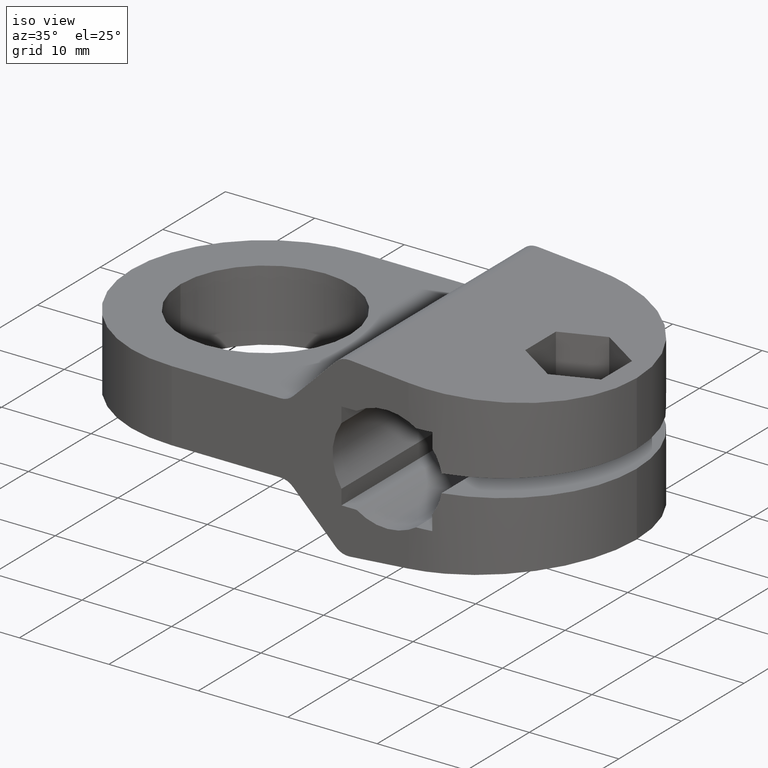
[diagram: clean part render]
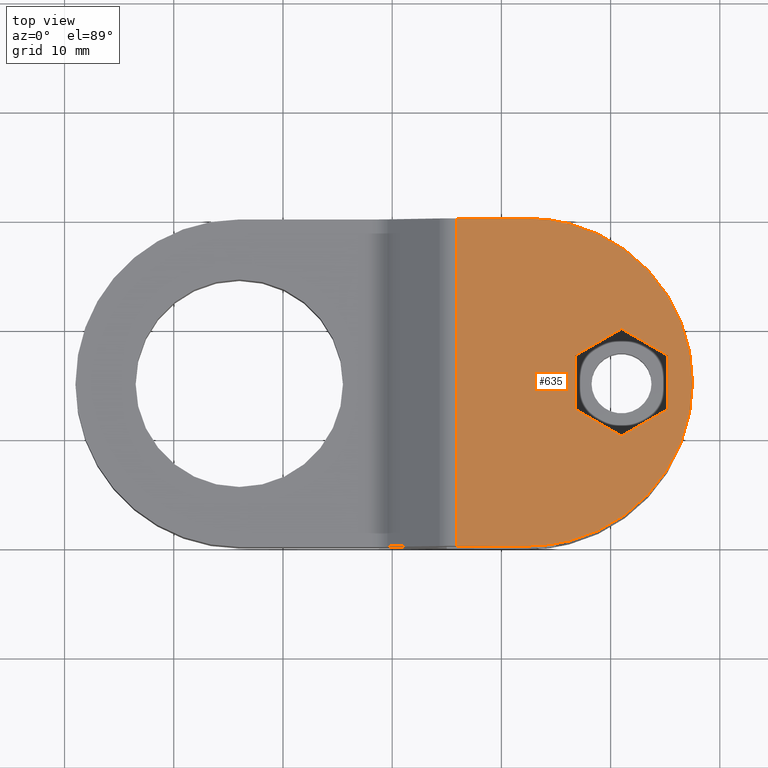
[diagram: tour spotlight — one face highlighted and labeled with its STEP entity id]
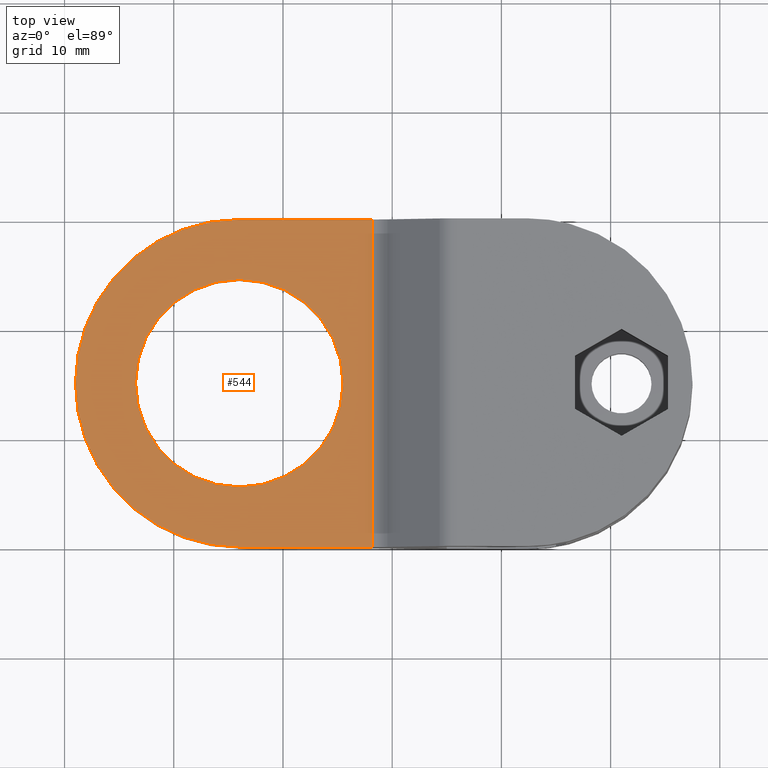
[diagram: tour spotlight — one face highlighted and labeled with its STEP entity id]
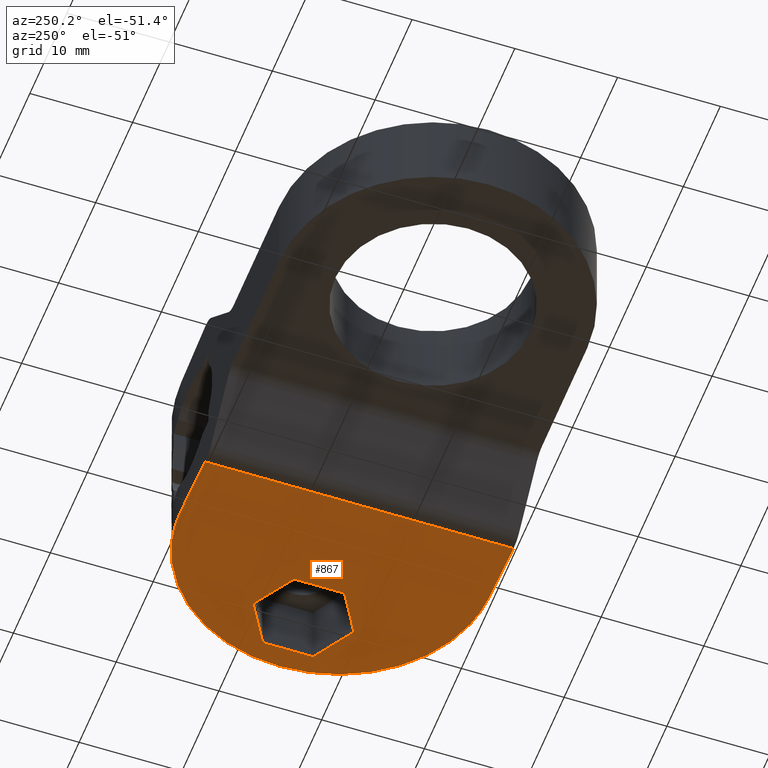
[diagram: tour spotlight — one face highlighted and labeled with its STEP entity id]
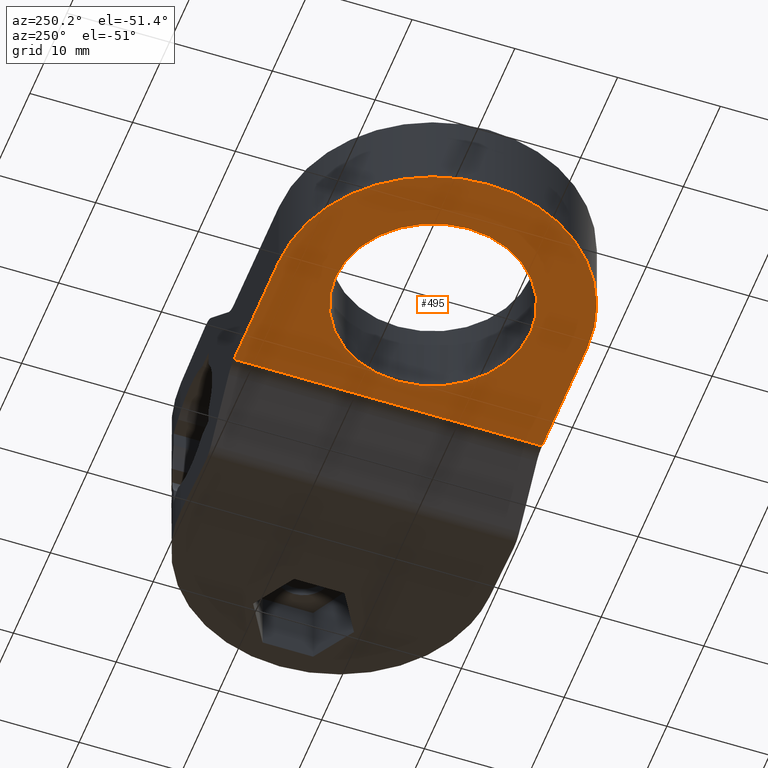
[diagram: tour spotlight — one face highlighted and labeled with its STEP entity id]
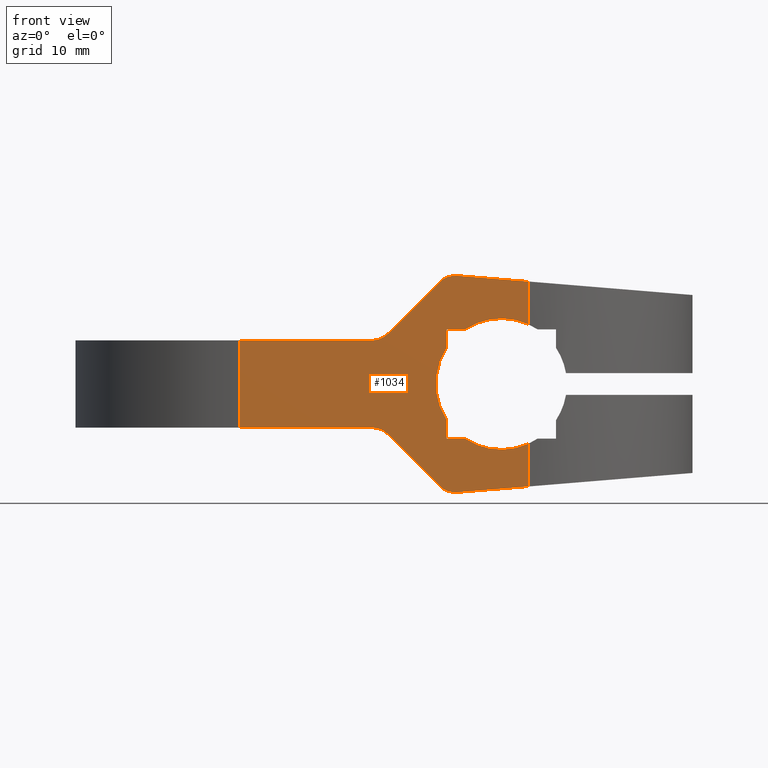
[diagram: tour spotlight — one face highlighted and labeled with its STEP entity id]
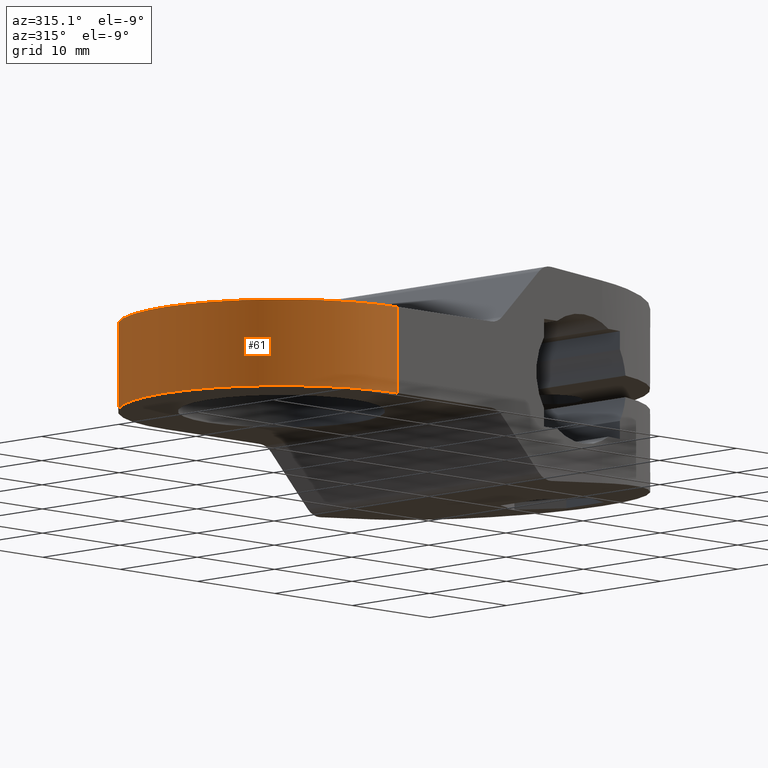
[diagram: tour spotlight — one face highlighted and labeled with its STEP entity id]
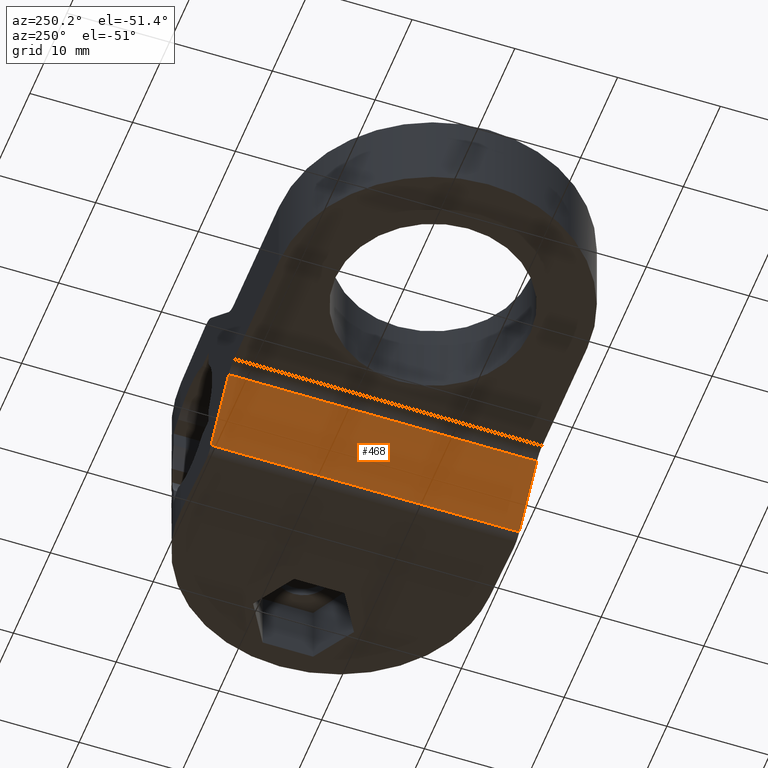
[diagram: tour spotlight — one face highlighted and labeled with its STEP entity id]
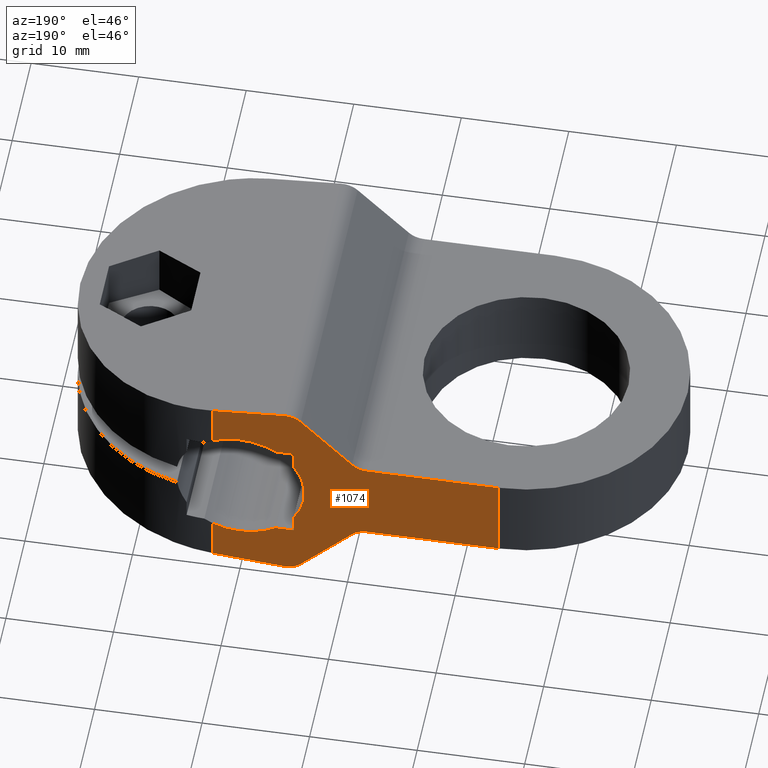
[diagram: tour spotlight — one face highlighted and labeled with its STEP entity id]
A machine part: a face-by-face anatomy tour. The part has 49 B-rep faces; the first image is the clean iso view, then the 8 largest visible faces are spotlighted one at a time (largest first), each with its STEP entity span.

Face 1 — top view, entity #635. In plain terms, the highlighted planar face has unit normal (0.0819, 0, 0.9966).
Definition (entity closure, byte-faithful):
#378=CARTESIAN_POINT('',(-4.076857879930003,-30.0,9.924097203460917));
#379=VERTEX_POINT('',#378);
#387=CARTESIAN_POINT('',(-4.076857879930003,0.0,9.924097203460917));
#388=VERTEX_POINT('',#387);
#389=CARTESIAN_POINT('',(-4.076857879930003,0.0,9.924097203460917));
#390=DIRECTION('',(0.0,-1.0,0.0));
#391=VECTOR('',#390,30.0);
#392=LINE('',#389,#391);
#393=EDGE_CURVE('',#388,#379,#392,.T.);
#545=CARTESIAN_POINT('',(17.500000000000000,0.0,8.149999999999999));
#546=DIRECTION('',(0.081945692132050,0.0,0.996636796200602));
#547=DIRECTION('',(-0.996636796200602,0.0,0.081945692132050));
#548=AXIS2_PLACEMENT_3D('',#545,#546,#547);
#549=PLANE('',#548);
#550=CARTESIAN_POINT('',(2.500000000000000,-29.999999999999993,9.383333333333340));
#551=VERTEX_POINT('',#550);
#552=CARTESIAN_POINT('',(-4.076857879930003,-30.0,9.924097203460919));
#553=DIRECTION('',(0.996636796200602,0.0,-0.081945692132050));
#554=VECTOR('',#553,6.599051836137730);
#555=LINE('',#552,#554);
#556=EDGE_CURVE('',#379,#551,#555,.T.);
#557=ORIENTED_EDGE('',*,*,#556,.T.);
#558=CARTESIAN_POINT('',(17.500000000000000,-15.0,8.149999999999999));
#559=VERTEX_POINT('',#558);
#560=CARTESIAN_POINT('',(2.500000000000000,-14.999999999999993,9.383333333333342));
#561=DIRECTION('',(-0.081945692132050,0.0,-0.996636796200602));
#562=DIRECTION('',(-0.996636796200602,4.620372E-015,0.081945692132050));
#563=AXIS2_PLACEMENT_3D('',#560,#561,#562);
#564=ELLIPSE('',#563,15.050618296638550,15.0);
#565=EDGE_CURVE('',#559,#551,#564,.T.);
#566=ORIENTED_EDGE('',*,*,#565,.F.);
#567=CARTESIAN_POINT('',(2.500000000000000,0.0,9.383333333333340));
#568=VERTEX_POINT('',#567);
#569=CARTESIAN_POINT('',(2.500000000000000,-15.0,9.383333333333342));
#570=DIRECTION('',(0.081945692132050,0.0,0.996636796200602));
#571=DIRECTION('',(-0.996636796200602,0.0,0.081945692132050));
#572=AXIS2_PLACEMENT_3D('',#569,#570,#571);
#573=ELLIPSE('',#572,15.050618296638550,15.0);
#574=EDGE_CURVE('',#559,#568,#573,.T.);
#575=ORIENTED_EDGE('',*,*,#574,.T.);
#576=CARTESIAN_POINT('',(2.499999999999998,0.0,9.383333333333338));
#577=DIRECTION('',(-0.996636796200602,0.0,0.081945692132050));
#578=VECTOR('',#577,6.599051836137727);
#579=LINE('',#576,#578);
#580=EDGE_CURVE('',#568,#388,#579,.T.);
#581=ORIENTED_EDGE('',*,*,#580,.T.);
#582=ORIENTED_EDGE('',*,*,#393,.T.);
#583=EDGE_LOOP('',(#557,#566,#575,#581,#582));
#584=FACE_OUTER_BOUND('',#583,.T.);
#585=CARTESIAN_POINT('',(15.249972875253775,-17.453738644055925,8.335002230256912));
#586=VERTEX_POINT('',#585);
#587=CARTESIAN_POINT('',(10.999972875253775,-19.907477288111835,8.684446674701356));
#588=VERTEX_POINT('',#587);
#589=CARTESIAN_POINT('',(15.249972875253775,-17.453738644055925,8.335002230256912));
#590=DIRECTION('',(-0.863838183019764,-0.498737207502738,0.071026695048292));
#591=VECTOR('',#590,4.919902921103873);
#592=LINE('',#589,#591);
#593=EDGE_CURVE('',#586,#588,#592,.T.);
#594=ORIENTED_EDGE('',*,*,#593,.T.);
#595=CARTESIAN_POINT('',(6.749972875253775,-17.453738644055925,9.033891119145807));
#596=VERTEX_POINT('',#595);
#597=CARTESIAN_POINT('',(6.749972875253775,-17.453738644055925,9.033891119145807));
#598=DIRECTION('',(0.863838183019764,-0.498737207502738,-0.071026695048293));
#599=VECTOR('',#598,4.919902921103874);
#600=LINE('',#597,#599);
#601=EDGE_CURVE('',#596,#588,#600,.T.);
#602=ORIENTED_EDGE('',*,*,#601,.F.);
#603=CARTESIAN_POINT('',(6.749972875253775,-12.546261355944104,9.033891119145807));
#604=VERTEX_POINT('',#603);
#605=CARTESIAN_POINT('',(6.749972875253775,-12.546261355944104,9.033891119145807));
#606=DIRECTION('',(0.0,-1.0,0.0));
#607=VECTOR('',#606,4.907477288111821);
#608=LINE('',#605,#607);
#609=EDGE_CURVE('',#604,#596,#608,.T.);
#610=ORIENTED_EDGE('',*,*,#609,.F.);
#611=CARTESIAN_POINT('',(10.999972875253775,-10.092522711888193,8.684446674701356));
#612=VERTEX_POINT('',#611);
#613=CARTESIAN_POINT('',(10.999972875253775,-10.092522711888193,8.684446674701356));
#614=DIRECTION('',(-0.863838183019764,-0.498737207502738,0.071026695048293));
#615=VECTOR('',#614,4.919902921103874);
#616=LINE('',#613,#615);
#617=EDGE_CURVE('',#612,#604,#616,.T.);
#618=ORIENTED_EDGE('',*,*,#617,.F.);
#619=CARTESIAN_POINT('',(15.249972875253775,-12.546261355944104,8.335002230256912));
#620=VERTEX_POINT('',#619);
#621=CARTESIAN_POINT('',(15.249972875253775,-12.546261355944104,8.335002230256912));
#622=DIRECTION('',(-0.863838183019764,0.498737207502738,0.071026695048292));
#623=VECTOR('',#622,4.919902921103873);
#624=LINE('',#621,#623);
#625=EDGE_CURVE('',#620,#612,#624,.T.);
#626=ORIENTED_EDGE('',*,*,#625,.F.);
#627=CARTESIAN_POINT('',(15.249972875253775,-17.453738644055925,8.335002230256912));
#628=DIRECTION('',(0.0,1.0,0.0));
#629=VECTOR('',#628,4.907477288111821);
#630=LINE('',#627,#629);
#631=EDGE_CURVE('',#586,#620,#630,.T.);
#632=ORIENTED_EDGE('',*,*,#631,.F.);
#633=EDGE_LOOP('',(#594,#602,#610,#618,#626,#632));
#634=FACE_BOUND('',#633,.T.);
#635=ADVANCED_FACE('',(#584,#634),#549,.T.);

Face 2 — top view, entity #544. In plain terms, the highlighted planar face has unit normal (0, 0, 1).
Definition (entity closure, byte-faithful):
#7=CARTESIAN_POINT('',(-24.0,0.0,4.000000000000007));
#8=VERTEX_POINT('',#7);
#9=CARTESIAN_POINT('',(-39.0,-15.000000000000007,4.0));
#10=VERTEX_POINT('',#9);
#11=CARTESIAN_POINT('',(-24.0,-15.000000000000007,4.000000000000007));
#12=DIRECTION('',(-1.033517E-016,1.776357E-016,1.0));
#13=DIRECTION('',(-1.0,0.0,-1.033517E-016));
#14=AXIS2_PLACEMENT_3D('',#11,#12,#13);
#15=CIRCLE('',#14,15.000000000000004);
#16=EDGE_CURVE('',#8,#10,#15,.T.);
#44=CARTESIAN_POINT('',(-24.0,-30.0,4.000000000000007));
#45=VERTEX_POINT('',#44);
#52=CARTESIAN_POINT('',(-24.0,-15.000000000000007,4.000000000000007));
#53=DIRECTION('',(-1.033517E-016,1.776357E-016,1.0));
#54=DIRECTION('',(-1.0,0.0,-1.033517E-016));
#55=AXIS2_PLACEMENT_3D('',#52,#53,#54);
#56=CIRCLE('',#55,15.000000000000004);
#57=EDGE_CURVE('',#10,#45,#56,.T.);
#67=CARTESIAN_POINT('',(-33.500000000000000,-15.000000000000007,4.000000000000007));
#68=VERTEX_POINT('',#67);
#94=CARTESIAN_POINT('',(-14.500000000000002,-15.000000000000007,4.000000000000010));
#95=VERTEX_POINT('',#94);
#96=CARTESIAN_POINT('',(-24.0,-15.000000000000007,4.000000000000007));
#97=DIRECTION('',(-2.537653E-016,0.0,1.0));
#98=DIRECTION('',(-1.0,0.0,-2.537653E-016));
#99=AXIS2_PLACEMENT_3D('',#96,#97,#98);
#100=CIRCLE('',#99,9.500000000000000);
#101=EDGE_CURVE('',#68,#95,#100,.T.);
#103=CARTESIAN_POINT('',(-24.0,-15.000000000000007,4.000000000000007));
#104=DIRECTION('',(-2.537653E-016,0.0,1.0));
#105=DIRECTION('',(-1.0,0.0,-2.537653E-016));
#106=AXIS2_PLACEMENT_3D('',#103,#104,#105);
#107=CIRCLE('',#106,9.500000000000000);
#108=EDGE_CURVE('',#95,#68,#107,.T.);
#412=CARTESIAN_POINT('',(-11.828427124746213,0.0,4.000000000000007));
#413=VERTEX_POINT('',#412);
#421=CARTESIAN_POINT('',(-11.828427124746213,-29.999999999999993,4.000000000000007));
#422=VERTEX_POINT('',#421);
#423=CARTESIAN_POINT('',(-11.828427124746213,0.0,4.000000000000007));
#424=DIRECTION('',(0.0,-1.0,0.0));
#425=VECTOR('',#424,29.999999999999993);
#426=LINE('',#423,#425);
#427=EDGE_CURVE('',#413,#422,#426,.T.);
#518=CARTESIAN_POINT('',(-11.0,0.0,4.000000000000007));
#519=DIRECTION('',(0.0,0.0,1.0));
#520=DIRECTION('',(-1.0,0.0,0.0));
#521=AXIS2_PLACEMENT_3D('',#518,#519,#520);
#522=PLANE('',#521);
#523=ORIENTED_EDGE('',*,*,#16,.T.);
#524=ORIENTED_EDGE('',*,*,#57,.T.);
#525=CARTESIAN_POINT('',(-24.0,-30.0,4.000000000000007));
#526=DIRECTION('',(1.0,0.0,0.0));
#527=VECTOR('',#526,12.171572875253787);
#528=LINE('',#525,#527);
#529=EDGE_CURVE('',#45,#422,#528,.T.);
#530=ORIENTED_EDGE('',*,*,#529,.T.);
#531=ORIENTED_EDGE('',*,*,#427,.F.);
#532=CARTESIAN_POINT('',(-11.828427124746213,0.0,4.000000000000007));
#533=DIRECTION('',(-1.0,0.0,0.0));
#534=VECTOR('',#533,12.171572875253787);
#535=LINE('',#532,#534);
#536=EDGE_CURVE('',#413,#8,#535,.T.);
#537=ORIENTED_EDGE('',*,*,#536,.T.);
#538=EDGE_LOOP('',(#523,#524,#530,#531,#537));
#539=FACE_OUTER_BOUND('',#538,.T.);
#540=ORIENTED_EDGE('',*,*,#108,.F.);
#541=ORIENTED_EDGE('',*,*,#101,.F.);
#542=EDGE_LOOP('',(#540,#541));
#543=FACE_BOUND('',#542,.T.);
#544=ADVANCED_FACE('',(#539,#543),#522,.T.);

Face 3 — auxiliary view, entity #867. In plain terms, the highlighted planar face has unit normal (0.0819, 0, -0.9966).
Definition (entity closure, byte-faithful):
#286=CARTESIAN_POINT('',(-4.076857879930003,0.0,-9.924097203460914));
#287=VERTEX_POINT('',#286);
#295=CARTESIAN_POINT('',(-4.076857879930003,-30.000000000000007,-9.924097203460914));
#296=VERTEX_POINT('',#295);
#297=CARTESIAN_POINT('',(-4.076857879930003,0.0,-9.924097203460914));
#298=DIRECTION('',(0.0,-1.0,0.0));
#299=VECTOR('',#298,30.000000000000007);
#300=LINE('',#297,#299);
#301=EDGE_CURVE('',#287,#296,#300,.T.);
#711=CARTESIAN_POINT('',(17.500000000000000,-15.0,-8.149999999999999));
#712=VERTEX_POINT('',#711);
#713=CARTESIAN_POINT('',(2.500000000000000,-30.0,-9.383333333333329));
#714=VERTEX_POINT('',#713);
#715=CARTESIAN_POINT('',(2.500000000000000,-15.0,-9.383333333333340));
#716=DIRECTION('',(0.081945692132050,0.0,-0.996636796200602));
#717=DIRECTION('',(0.996636796200602,4.620372E-015,0.081945692132050));
#718=AXIS2_PLACEMENT_3D('',#715,#716,#717);
#719=ELLIPSE('',#718,15.050618296638550,15.0);
#720=EDGE_CURVE('',#712,#714,#719,.T.);
#787=CARTESIAN_POINT('',(-5.0,0.0,-10.000000000000004));
#788=DIRECTION('',(0.081945692132050,0.0,-0.996636796200602));
#789=DIRECTION('',(0.996636796200602,0.0,0.081945692132050));
#790=AXIS2_PLACEMENT_3D('',#787,#788,#789);
#791=PLANE('',#790);
#792=CARTESIAN_POINT('',(2.500000000000000,0.0,-9.383333333333333));
#793=VERTEX_POINT('',#792);
#794=CARTESIAN_POINT('',(-4.076857879930003,0.0,-9.924097203460915));
#795=DIRECTION('',(0.996636796200602,0.0,0.081945692132050));
#796=VECTOR('',#795,6.599051836137730);
#797=LINE('',#794,#796);
#798=EDGE_CURVE('',#287,#793,#797,.T.);
#799=ORIENTED_EDGE('',*,*,#798,.T.);
#800=CARTESIAN_POINT('',(2.500000000000000,-15.0,-9.383333333333340));
#801=DIRECTION('',(-0.081945692132050,0.0,0.996636796200602));
#802=DIRECTION('',(0.996636796200602,0.0,0.081945692132050));
#803=AXIS2_PLACEMENT_3D('',#800,#801,#802);
#804=ELLIPSE('',#803,15.050618296638550,15.0);
#805=EDGE_CURVE('',#712,#793,#804,.T.);
#806=ORIENTED_EDGE('',*,*,#805,.F.);
#807=ORIENTED_EDGE('',*,*,#720,.T.);
#808=CARTESIAN_POINT('',(-4.076857879930004,-30.000000000000007,-9.924097203460905));
#809=DIRECTION('',(0.996636796200602,5.383673E-016,0.081945692132049));
#810=VECTOR('',#809,6.599051836137731);
#811=LINE('',#808,#810);
#812=EDGE_CURVE('',#296,#714,#811,.T.);
#813=ORIENTED_EDGE('',*,*,#812,.F.);
#814=ORIENTED_EDGE('',*,*,#301,.F.);
#815=EDGE_LOOP('',(#799,#806,#807,#813,#814));
#816=FACE_OUTER_BOUND('',#815,.T.);
#817=CARTESIAN_POINT('',(15.249972875253775,-12.546261355944104,-8.335002230256919));
#818=VERTEX_POINT('',#817);
#819=CARTESIAN_POINT('',(10.999972875253775,-10.092522711888193,-8.684446674701363));
#820=VERTEX_POINT('',#819);
#821=CARTESIAN_POINT('',(15.249972875253775,-12.546261355944104,-8.335002230256919));
#822=DIRECTION('',(-0.863838183019764,0.498737207502738,-0.071026695048292));
#823=VECTOR('',#822,4.919902921103873);
#824=LINE('',#821,#823);
#825=EDGE_CURVE('',#818,#820,#824,.T.);
#826=ORIENTED_EDGE('',*,*,#825,.T.);
#827=CARTESIAN_POINT('',(6.749972875253775,-12.546261355944104,-9.033891119145810));
#828=VERTEX_POINT('',#827);
#829=CARTESIAN_POINT('',(6.749972875253775,-12.546261355944104,-9.033891119145810));
#830=DIRECTION('',(0.863838183019764,0.498737207502738,0.071026695048292));
#831=VECTOR('',#830,4.919902921103874);
#832=LINE('',#829,#831);
#833=EDGE_CURVE('',#828,#820,#832,.T.);
#834=ORIENTED_EDGE('',*,*,#833,.F.);
#835=CARTESIAN_POINT('',(6.749972875253775,-17.453738644055925,-9.033891119145810));
#836=VERTEX_POINT('',#835);
#837=CARTESIAN_POINT('',(6.749972875253775,-17.453738644055925,-9.033891119145810));
#838=DIRECTION('',(0.0,1.0,0.0));
#839=VECTOR('',#838,4.907477288111821);
#840=LINE('',#837,#839);
#841=EDGE_CURVE('',#836,#828,#840,.T.);
#842=ORIENTED_EDGE('',*,*,#841,.F.);
#843=CARTESIAN_POINT('',(10.999972875253775,-19.907477288111835,-8.684446674701363));
#844=VERTEX_POINT('',#843);
#845=CARTESIAN_POINT('',(10.999972875253775,-19.907477288111835,-8.684446674701363));
#846=DIRECTION('',(-0.863838183019764,0.498737207502738,-0.071026695048292));
#847=VECTOR('',#846,4.919902921103874);
#848=LINE('',#845,#847);
#849=EDGE_CURVE('',#844,#836,#848,.T.);
#850=ORIENTED_EDGE('',*,*,#849,.F.);
#851=CARTESIAN_POINT('',(15.249972875253775,-17.453738644055925,-8.335002230256919));
#852=VERTEX_POINT('',#851);
#853=CARTESIAN_POINT('',(15.249972875253775,-17.453738644055925,-8.335002230256919));
#854=DIRECTION('',(-0.863838183019764,-0.498737207502738,-0.071026695048292));
#855=VECTOR('',#854,4.919902921103873);
#856=LINE('',#853,#855);
#857=EDGE_CURVE('',#852,#844,#856,.T.);
#858=ORIENTED_EDGE('',*,*,#857,.F.);
#859=CARTESIAN_POINT('',(15.249972875253775,-12.546261355944104,-8.335002230256919));
#860=DIRECTION('',(0.0,-1.0,0.0));
#861=VECTOR('',#860,4.907477288111821);
#862=LINE('',#859,#861);
#863=EDGE_CURVE('',#818,#852,#862,.T.);
#864=ORIENTED_EDGE('',*,*,#863,.F.);
#865=EDGE_LOOP('',(#826,#834,#842,#850,#858,#864));
#866=FACE_BOUND('',#865,.T.);
#867=ADVANCED_FACE('',(#816,#866),#791,.T.);

Face 4 — auxiliary view, entity #495. In plain terms, the highlighted planar face has unit normal (0, 0, -1).
Definition (entity closure, byte-faithful):
#18=CARTESIAN_POINT('',(-24.0,0.0,-4.000000000000007));
#19=VERTEX_POINT('',#18);
#26=CARTESIAN_POINT('',(-39.0,-15.000000000000007,-4.000000000000007));
#27=VERTEX_POINT('',#26);
#28=CARTESIAN_POINT('',(-24.0,-15.000000000000007,-4.000000000000007));
#29=DIRECTION('',(-1.033517E-016,1.776357E-016,1.0));
#30=DIRECTION('',(-1.0,0.0,-1.033517E-016));
#31=AXIS2_PLACEMENT_3D('',#28,#29,#30);
#32=CIRCLE('',#31,15.000000000000004);
#33=EDGE_CURVE('',#19,#27,#32,.T.);
#35=CARTESIAN_POINT('',(-24.0,-30.000000000000007,-4.000000000000007));
#36=VERTEX_POINT('',#35);
#37=CARTESIAN_POINT('',(-24.0,-15.000000000000007,-4.000000000000007));
#38=DIRECTION('',(-1.033517E-016,1.776357E-016,1.0));
#39=DIRECTION('',(-1.0,0.0,-1.033517E-016));
#40=AXIS2_PLACEMENT_3D('',#37,#38,#39);
#41=CIRCLE('',#40,15.000000000000004);
#42=EDGE_CURVE('',#27,#36,#41,.T.);
#69=CARTESIAN_POINT('',(-33.500000000000000,-15.000000000000007,-4.000000000000007));
#70=VERTEX_POINT('',#69);
#77=CARTESIAN_POINT('',(-14.499999999999998,-15.000000000000007,-4.000000000000004));
#78=VERTEX_POINT('',#77);
#79=CARTESIAN_POINT('',(-24.0,-15.000000000000007,-4.000000000000007));
#80=DIRECTION('',(-2.537653E-016,0.0,1.0));
#81=DIRECTION('',(-1.0,0.0,-2.537653E-016));
#82=AXIS2_PLACEMENT_3D('',#79,#80,#81);
#83=CIRCLE('',#82,9.500000000000000);
#84=EDGE_CURVE('',#78,#70,#83,.T.);
#86=CARTESIAN_POINT('',(-24.0,-15.000000000000007,-4.000000000000007));
#87=DIRECTION('',(-2.537653E-016,0.0,1.0));
#88=DIRECTION('',(-1.0,0.0,-2.537653E-016));
#89=AXIS2_PLACEMENT_3D('',#86,#87,#88);
#90=CIRCLE('',#89,9.500000000000000);
#91=EDGE_CURVE('',#70,#78,#90,.T.);
#336=CARTESIAN_POINT('',(-11.828427124746213,-29.999999999999993,-4.000000000000007));
#337=VERTEX_POINT('',#336);
#345=CARTESIAN_POINT('',(-11.828427124746213,0.0,-4.000000000000007));
#346=VERTEX_POINT('',#345);
#347=CARTESIAN_POINT('',(-11.828427124746213,0.0,-4.000000000000007));
#348=DIRECTION('',(0.0,-1.0,0.0));
#349=VECTOR('',#348,29.999999999999993);
#350=LINE('',#347,#349);
#351=EDGE_CURVE('',#346,#337,#350,.T.);
#469=CARTESIAN_POINT('',(-39.0,0.0,-4.000000000000007));
#470=DIRECTION('',(0.0,0.0,-1.0));
#471=DIRECTION('',(1.0,0.0,0.0));
#472=AXIS2_PLACEMENT_3D('',#469,#470,#471);
#473=PLANE('',#472);
#474=ORIENTED_EDGE('',*,*,#33,.F.);
#475=CARTESIAN_POINT('',(-24.0,0.0,-4.000000000000007));
#476=DIRECTION('',(1.0,0.0,0.0));
#477=VECTOR('',#476,12.171572875253787);
#478=LINE('',#475,#477);
#479=EDGE_CURVE('',#19,#346,#478,.T.);
#480=ORIENTED_EDGE('',*,*,#479,.T.);
#481=ORIENTED_EDGE('',*,*,#351,.T.);
#482=CARTESIAN_POINT('',(-24.0,-30.000000000000007,-4.000000000000007));
#483=DIRECTION('',(1.0,0.0,0.0));
#484=VECTOR('',#483,12.171572875253787);
#485=LINE('',#482,#484);
#486=EDGE_CURVE('',#36,#337,#485,.T.);
#487=ORIENTED_EDGE('',*,*,#486,.F.);
#488=ORIENTED_EDGE('',*,*,#42,.F.);
#489=EDGE_LOOP('',(#474,#480,#481,#487,#488));
#490=FACE_OUTER_BOUND('',#489,.T.);
#491=ORIENTED_EDGE('',*,*,#91,.T.);
#492=ORIENTED_EDGE('',*,*,#84,.T.);
#493=EDGE_LOOP('',(#491,#492));
#494=FACE_BOUND('',#493,.T.);
#495=ADVANCED_FACE('',(#490,#494),#473,.T.);

Face 5 — front view, entity #1034. In plain terms, the highlighted planar face has unit normal (0, -1, 0).
Definition (entity closure, byte-faithful):
#35=CARTESIAN_POINT('',(-24.0,-30.000000000000007,-4.000000000000007));
#36=VERTEX_POINT('',#35);
#44=CARTESIAN_POINT('',(-24.0,-30.0,4.000000000000007));
#45=VERTEX_POINT('',#44);
#46=CARTESIAN_POINT('',(-24.0,-30.000000000000004,-4.000000000000007));
#47=DIRECTION('',(0.0,0.0,1.0));
#48=VECTOR('',#47,8.000000000000014);
#49=LINE('',#46,#48);
#50=EDGE_CURVE('',#36,#45,#49,.T.);
#128=CARTESIAN_POINT('',(-5.0,-29.999999999999993,-5.000000000000007));
#129=VERTEX_POINT('',#128);
#136=CARTESIAN_POINT('',(-3.316624790355377,-30.0,-5.000000000000007));
#137=VERTEX_POINT('',#136);
#138=CARTESIAN_POINT('',(-3.316624790355377,-30.0,-5.000000000000007));
#139=DIRECTION('',(-1.0,0.0,0.0));
#140=VECTOR('',#139,1.683375209644623);
#141=LINE('',#138,#140);
#142=EDGE_CURVE('',#137,#129,#141,.T.);
#166=CARTESIAN_POINT('',(-5.0,-30.0,-3.316624790355402));
#167=VERTEX_POINT('',#166);
#174=CARTESIAN_POINT('',(-5.0,-30.0,-3.316624790355402));
#175=DIRECTION('',(0.0,0.0,-1.0));
#176=VECTOR('',#175,1.683375209644606);
#177=LINE('',#174,#176);
#178=EDGE_CURVE('',#167,#129,#177,.T.);
#199=CARTESIAN_POINT('',(-5.0,-29.999999999999993,4.999999999999993));
#200=VERTEX_POINT('',#199);
#207=CARTESIAN_POINT('',(-5.0,-30.0,3.316624790355398));
#208=VERTEX_POINT('',#207);
#209=CARTESIAN_POINT('',(-5.0,-29.999999999999993,4.999999999999993));
#210=DIRECTION('',(0.0,0.0,-1.0));
#211=VECTOR('',#210,1.683375209644595);
#212=LINE('',#209,#211);
#213=EDGE_CURVE('',#200,#208,#212,.T.);
#237=CARTESIAN_POINT('',(-3.316624790355434,-30.0,4.999999999999993));
#238=VERTEX_POINT('',#237);
#245=CARTESIAN_POINT('',(-5.0,-29.999999999999993,4.999999999999993));
#246=DIRECTION('',(1.0,0.0,0.0));
#247=VECTOR('',#246,1.683375209644566);
#248=LINE('',#245,#247);
#249=EDGE_CURVE('',#200,#238,#248,.T.);
#269=CARTESIAN_POINT('',(0.0,-30.0,0.0));
#270=DIRECTION('',(0.0,-1.0,0.0));
#271=DIRECTION('',(-1.0,0.0,-8.560756E-017));
#272=AXIS2_PLACEMENT_3D('',#269,#270,#271);
#273=CIRCLE('',#272,6.0);
#274=EDGE_CURVE('',#208,#167,#273,.T.);
#295=CARTESIAN_POINT('',(-4.076857879930003,-30.000000000000007,-9.924097203460914));
#296=VERTEX_POINT('',#295);
#303=CARTESIAN_POINT('',(-5.654962826567214,-30.000000000000007,-9.345037173432807));
#304=VERTEX_POINT('',#303);
#305=CARTESIAN_POINT('',(-4.240749264194109,-30.000000000000014,-7.930823611059712));
#306=DIRECTION('',(0.0,-1.000000000000000,0.0));
#307=DIRECTION('',(-0.707106781186550,0.0,-0.707106781186545));
#308=AXIS2_PLACEMENT_3D('',#305,#306,#307);
#309=CIRCLE('',#308,2.000000000000008);
#310=EDGE_CURVE('',#304,#296,#309,.T.);
#328=CARTESIAN_POINT('',(-10.414213562373106,-29.999999999999993,-4.585786437626911));
#329=VERTEX_POINT('',#328);
#336=CARTESIAN_POINT('',(-11.828427124746213,-29.999999999999993,-4.000000000000007));
#337=VERTEX_POINT('',#336);
#338=CARTESIAN_POINT('',(-11.828427124746213,-30.000000000000014,-6.000000000000005));
#339=DIRECTION('',(0.0,-1.000000000000000,0.0));
#340=DIRECTION('',(0.707106781186550,0.0,0.707106781186545));
#341=AXIS2_PLACEMENT_3D('',#338,#339,#340);
#342=CIRCLE('',#341,2.000000000000008);
#343=EDGE_CURVE('',#329,#337,#342,.T.);
#370=CARTESIAN_POINT('',(-5.654962826567214,-30.0,9.345037173432807));
#371=VERTEX_POINT('',#370);
#378=CARTESIAN_POINT('',(-4.076857879930003,-30.0,9.924097203460917));
#379=VERTEX_POINT('',#378);
#380=CARTESIAN_POINT('',(-4.240749264194109,-30.000000000000014,7.930823611059716));
#381=DIRECTION('',(0.0,1.000000000000000,0.0));
#382=DIRECTION('',(-0.707106781186551,0.0,0.707106781186544));
#383=AXIS2_PLACEMENT_3D('',#380,#381,#382);
#384=CIRCLE('',#383,2.000000000000006);
#385=EDGE_CURVE('',#371,#379,#384,.T.);
#421=CARTESIAN_POINT('',(-11.828427124746213,-29.999999999999993,4.000000000000007));
#422=VERTEX_POINT('',#421);
#429=CARTESIAN_POINT('',(-10.414213562373106,-29.999999999999993,4.585786437626908));
#430=VERTEX_POINT('',#429);
#431=CARTESIAN_POINT('',(-11.828427124746215,-30.0,6.000000000000007));
#432=DIRECTION('',(0.0,1.0,0.0));
#433=DIRECTION('',(0.707106781186549,0.0,-0.707106781186546));
#434=AXIS2_PLACEMENT_3D('',#431,#432,#433);
#435=CIRCLE('',#434,2.000000000000011);
#436=EDGE_CURVE('',#430,#422,#435,.T.);
#459=CARTESIAN_POINT('',(-5.654962826567201,-30.000000000000007,-9.345037173432793));
#460=DIRECTION('',(-0.707106781186548,2.111381E-015,0.707106781186547));
#461=VECTOR('',#460,6.730596937310827);
#462=LINE('',#459,#461);
#463=EDGE_CURVE('',#304,#329,#462,.T.);
#482=CARTESIAN_POINT('',(-24.0,-30.000000000000007,-4.000000000000007));
#483=DIRECTION('',(1.0,0.0,0.0));
#484=VECTOR('',#483,12.171572875253787);
#485=LINE('',#482,#484);
#486=EDGE_CURVE('',#36,#337,#485,.T.);
#502=CARTESIAN_POINT('',(-5.654962826567207,-30.0,9.345037173432800));
#503=DIRECTION('',(-0.707106781186547,1.055691E-015,-0.707106781186548));
#504=VECTOR('',#503,6.730596937310830);
#505=LINE('',#502,#504);
#506=EDGE_CURVE('',#371,#430,#505,.T.);
#525=CARTESIAN_POINT('',(-24.0,-30.0,4.000000000000007));
#526=DIRECTION('',(1.0,0.0,0.0));
#527=VECTOR('',#526,12.171572875253787);
#528=LINE('',#525,#527);
#529=EDGE_CURVE('',#45,#422,#528,.T.);
#550=CARTESIAN_POINT('',(2.500000000000000,-29.999999999999993,9.383333333333340));
#551=VERTEX_POINT('',#550);
#552=CARTESIAN_POINT('',(-4.076857879930003,-30.0,9.924097203460919));
#553=DIRECTION('',(0.996636796200602,0.0,-0.081945692132050));
#554=VECTOR('',#553,6.599051836137730);
#555=LINE('',#552,#554);
#556=EDGE_CURVE('',#379,#551,#555,.T.);
#659=CARTESIAN_POINT('',(2.500000000000057,-29.999999999999993,5.454356057317867));
#660=VERTEX_POINT('',#659);
#661=CARTESIAN_POINT('',(2.500000000000000,-29.999999999999993,5.454356057317867));
#662=DIRECTION('',(0.0,0.0,1.0));
#663=VECTOR('',#662,3.928977276015473);
#664=LINE('',#661,#663);
#665=EDGE_CURVE('',#660,#551,#664,.T.);
#713=CARTESIAN_POINT('',(2.500000000000000,-30.0,-9.383333333333329));
#714=VERTEX_POINT('',#713);
#768=CARTESIAN_POINT('',(2.500000000000000,-30.0,-5.454356057317860));
#769=VERTEX_POINT('',#768);
#778=CARTESIAN_POINT('',(2.500000000000000,-30.0,-9.383333333333329));
#779=DIRECTION('',(0.0,0.0,1.0));
#780=VECTOR('',#779,3.928977276015470);
#781=LINE('',#778,#780);
#782=EDGE_CURVE('',#714,#769,#781,.T.);
#808=CARTESIAN_POINT('',(-4.076857879930004,-30.000000000000007,-9.924097203460905));
#809=DIRECTION('',(0.996636796200602,5.383673E-016,0.081945692132049));
#810=VECTOR('',#809,6.599051836137731);
#811=LINE('',#808,#810);
#812=EDGE_CURVE('',#296,#714,#811,.T.);
#995=CARTESIAN_POINT('',(-24.0,-30.000000000000007,-9.999999999999996));
#996=DIRECTION('',(0.0,-1.0,0.0));
#997=DIRECTION('',(1.0,0.0,0.0));
#998=AXIS2_PLACEMENT_3D('',#995,#996,#997);
#999=PLANE('',#998);
#1000=ORIENTED_EDGE('',*,*,#506,.T.);
#1001=ORIENTED_EDGE('',*,*,#436,.T.);
#1002=ORIENTED_EDGE('',*,*,#529,.F.);
#1003=ORIENTED_EDGE('',*,*,#50,.F.);
#1004=ORIENTED_EDGE('',*,*,#486,.T.);
#1005=ORIENTED_EDGE('',*,*,#343,.F.);
#1006=ORIENTED_EDGE('',*,*,#463,.F.);
#1007=ORIENTED_EDGE('',*,*,#310,.T.);
#1008=ORIENTED_EDGE('',*,*,#812,.T.);
#1009=ORIENTED_EDGE('',*,*,#782,.T.);
#1010=CARTESIAN_POINT('',(0.0,-30.0,0.0));
#1011=DIRECTION('',(0.0,1.0,0.0));
#1012=DIRECTION('',(-1.0,0.0,-8.560756E-017));
#1013=AXIS2_PLACEMENT_3D('',#1010,#1011,#1012);
#1014=CIRCLE('',#1013,6.0);
#1015=EDGE_CURVE('',#769,#137,#1014,.T.);
#1016=ORIENTED_EDGE('',*,*,#1015,.T.);
#1017=ORIENTED_EDGE('',*,*,#142,.T.);
#1018=ORIENTED_EDGE('',*,*,#178,.F.);
#1019=ORIENTED_EDGE('',*,*,#274,.F.);
#1020=ORIENTED_EDGE('',*,*,#213,.F.);
#1021=ORIENTED_EDGE('',*,*,#249,.T.);
#1022=CARTESIAN_POINT('',(0.0,-30.0,0.0));
#1023=DIRECTION('',(0.0,1.0,0.0));
#1024=DIRECTION('',(-1.0,0.0,-8.560756E-017));
#1025=AXIS2_PLACEMENT_3D('',#1022,#1023,#1024);
#1026=CIRCLE('',#1025,6.0);
#1027=EDGE_CURVE('',#238,#660,#1026,.T.);
#1028=ORIENTED_EDGE('',*,*,#1027,.T.);
#1029=ORIENTED_EDGE('',*,*,#665,.T.);
#1030=ORIENTED_EDGE('',*,*,#556,.F.);
#1031=ORIENTED_EDGE('',*,*,#385,.F.);
#1032=EDGE_LOOP('',(#1000,#1001,#1002,#1003,#1004,#1005,#1006,#1007,#1008,#1009,#1016,#1017,#1018,#1019,#1020,#1021,#1028,#1029,#1030,#1031));
#1033=FACE_OUTER_BOUND('',#1032,.T.);
#1034=ADVANCED_FACE('',(#1033),#999,.T.);

Face 6 — auxiliary view, entity #61. In plain terms, the highlighted cylindrical surface (partial cylindrical patch) has radius 15 mm, axis along (-0, 0, 1).
Definition (entity closure, byte-faithful):
#2=CARTESIAN_POINT('',(-24.0,-15.000000000000007,-9.999999999999996));
#3=DIRECTION('',(-1.033517E-016,1.776357E-016,1.0));
#4=DIRECTION('',(-6.123234E-017,1.0,-1.776357E-016));
#5=AXIS2_PLACEMENT_3D('',#2,#3,#4);
#6=CYLINDRICAL_SURFACE('',#5,15.000000000000004);
#7=CARTESIAN_POINT('',(-24.0,0.0,4.000000000000007));
#8=VERTEX_POINT('',#7);
#9=CARTESIAN_POINT('',(-39.0,-15.000000000000007,4.0));
#10=VERTEX_POINT('',#9);
#11=CARTESIAN_POINT('',(-24.0,-15.000000000000007,4.000000000000007));
#12=DIRECTION('',(-1.033517E-016,1.776357E-016,1.0));
#13=DIRECTION('',(-1.0,0.0,-1.033517E-016));
#14=AXIS2_PLACEMENT_3D('',#11,#12,#13);
#15=CIRCLE('',#14,15.000000000000004);
#16=EDGE_CURVE('',#8,#10,#15,.T.);
#17=ORIENTED_EDGE('',*,*,#16,.F.);
#18=CARTESIAN_POINT('',(-24.0,0.0,-4.000000000000007));
#19=VERTEX_POINT('',#18);
#20=CARTESIAN_POINT('',(-24.0,0.0,-4.000000000000009));
#21=DIRECTION('',(0.0,0.0,1.0));
#22=VECTOR('',#21,8.000000000000012);
#23=LINE('',#20,#22);
#24=EDGE_CURVE('',#19,#8,#23,.T.);
#25=ORIENTED_EDGE('',*,*,#24,.F.);
#26=CARTESIAN_POINT('',(-39.0,-15.000000000000007,-4.000000000000007));
#27=VERTEX_POINT('',#26);
#28=CARTESIAN_POINT('',(-24.0,-15.000000000000007,-4.000000000000007));
#29=DIRECTION('',(-1.033517E-016,1.776357E-016,1.0));
#30=DIRECTION('',(-1.0,0.0,-1.033517E-016));
#31=AXIS2_PLACEMENT_3D('',#28,#29,#30);
#32=CIRCLE('',#31,15.000000000000004);
#33=EDGE_CURVE('',#19,#27,#32,.T.);
#34=ORIENTED_EDGE('',*,*,#33,.T.);
#35=CARTESIAN_POINT('',(-24.0,-30.000000000000007,-4.000000000000007));
#36=VERTEX_POINT('',#35);
#37=CARTESIAN_POINT('',(-24.0,-15.000000000000007,-4.000000000000007));
#38=DIRECTION('',(-1.033517E-016,1.776357E-016,1.0));
#39=DIRECTION('',(-1.0,0.0,-1.033517E-016));
#40=AXIS2_PLACEMENT_3D('',#37,#38,#39);
#41=CIRCLE('',#40,15.000000000000004);
#42=EDGE_CURVE('',#27,#36,#41,.T.);
#43=ORIENTED_EDGE('',*,*,#42,.T.);
#44=CARTESIAN_POINT('',(-24.0,-30.0,4.000000000000007));
#45=VERTEX_POINT('',#44);
#46=CARTESIAN_POINT('',(-24.0,-30.000000000000004,-4.000000000000007));
#47=DIRECTION('',(0.0,0.0,1.0));
#48=VECTOR('',#47,8.000000000000014);
#49=LINE('',#46,#48);
#50=EDGE_CURVE('',#36,#45,#49,.T.);
#51=ORIENTED_EDGE('',*,*,#50,.T.);
#52=CARTESIAN_POINT('',(-24.0,-15.000000000000007,4.000000000000007));
#53=DIRECTION('',(-1.033517E-016,1.776357E-016,1.0));
#54=DIRECTION('',(-1.0,0.0,-1.033517E-016));
#55=AXIS2_PLACEMENT_3D('',#52,#53,#54);
#56=CIRCLE('',#55,15.000000000000004);
#57=EDGE_CURVE('',#10,#45,#56,.T.);
#58=ORIENTED_EDGE('',*,*,#57,.F.);
#59=EDGE_LOOP('',(#17,#25,#34,#43,#51,#58));
#60=FACE_OUTER_BOUND('',#59,.T.);
#61=ADVANCED_FACE('',(#60),#6,.T.);

Face 7 — auxiliary view, entity #468. In plain terms, the highlighted planar face has unit normal (-0.7071, 0, -0.7071).
Definition (entity closure, byte-faithful):
#284=CARTESIAN_POINT('',(-5.654962826567214,0.0,-9.345037173432807));
#285=VERTEX_POINT('',#284);
#303=CARTESIAN_POINT('',(-5.654962826567214,-30.000000000000007,-9.345037173432807));
#304=VERTEX_POINT('',#303);
#312=CARTESIAN_POINT('',(-5.654962826567214,0.0,-9.345037173432807));
#313=DIRECTION('',(0.0,-1.0,0.0));
#314=VECTOR('',#313,30.000000000000007);
#315=LINE('',#312,#314);
#316=EDGE_CURVE('',#285,#304,#315,.T.);
#326=CARTESIAN_POINT('',(-10.414213562373106,0.0,-4.585786437626911));
#327=VERTEX_POINT('',#326);
#328=CARTESIAN_POINT('',(-10.414213562373106,-29.999999999999993,-4.585786437626911));
#329=VERTEX_POINT('',#328);
#330=CARTESIAN_POINT('',(-10.414213562373106,0.0,-4.585786437626911));
#331=DIRECTION('',(0.0,-1.0,0.0));
#332=VECTOR('',#331,29.999999999999993);
#333=LINE('',#330,#332);
#334=EDGE_CURVE('',#327,#329,#333,.T.);
#447=CARTESIAN_POINT('',(-11.0,0.0,-4.000000000000007));
#448=DIRECTION('',(-0.707106781186547,0.0,-0.707106781186548));
#449=DIRECTION('',(0.707106781186548,0.0,-0.707106781186547));
#450=AXIS2_PLACEMENT_3D('',#447,#448,#449);
#451=PLANE('',#450);
#452=CARTESIAN_POINT('',(-10.414213562373101,0.0,-4.585786437626906));
#453=DIRECTION('',(0.707106781186548,0.0,-0.707106781186547));
#454=VECTOR('',#453,6.730596937310827);
#455=LINE('',#452,#454);
#456=EDGE_CURVE('',#327,#285,#455,.T.);
#457=ORIENTED_EDGE('',*,*,#456,.T.);
#458=ORIENTED_EDGE('',*,*,#316,.T.);
#459=CARTESIAN_POINT('',(-5.654962826567201,-30.000000000000007,-9.345037173432793));
#460=DIRECTION('',(-0.707106781186548,2.111381E-015,0.707106781186547));
#461=VECTOR('',#460,6.730596937310827);
#462=LINE('',#459,#461);
#463=EDGE_CURVE('',#304,#329,#462,.T.);
#464=ORIENTED_EDGE('',*,*,#463,.T.);
#465=ORIENTED_EDGE('',*,*,#334,.F.);
#466=EDGE_LOOP('',(#457,#458,#464,#465));
#467=FACE_OUTER_BOUND('',#466,.T.);
#468=ADVANCED_FACE('',(#467),#451,.T.);

Face 8 — auxiliary view, entity #1074. In plain terms, the highlighted planar face has unit normal (0, 1, 0).
Definition (entity closure, byte-faithful):
#7=CARTESIAN_POINT('',(-24.0,0.0,4.000000000000007));
#8=VERTEX_POINT('',#7);
#18=CARTESIAN_POINT('',(-24.0,0.0,-4.000000000000007));
#19=VERTEX_POINT('',#18);
#20=CARTESIAN_POINT('',(-24.0,0.0,-4.000000000000009));
#21=DIRECTION('',(0.0,0.0,1.0));
#22=VECTOR('',#21,8.000000000000012);
#23=LINE('',#20,#22);
#24=EDGE_CURVE('',#19,#8,#23,.T.);
#118=CARTESIAN_POINT('',(-3.316624790355377,0.0,-5.000000000000007));
#119=VERTEX_POINT('',#118);
#120=CARTESIAN_POINT('',(-5.0,0.0,-5.000000000000007));
#121=VERTEX_POINT('',#120);
#122=CARTESIAN_POINT('',(-3.316624790355389,0.0,-5.000000000000007));
#123=DIRECTION('',(-1.0,0.0,0.0));
#124=VECTOR('',#123,1.683375209644611);
#125=LINE('',#122,#124);
#126=EDGE_CURVE('',#119,#121,#125,.T.);
#158=CARTESIAN_POINT('',(-5.0,0.0,-3.316624790355398));
#159=VERTEX_POINT('',#158);
#160=CARTESIAN_POINT('',(-5.0,0.0,-5.000000000000007));
#161=DIRECTION('',(0.0,0.0,1.0));
#162=VECTOR('',#161,1.683375209644607);
#163=LINE('',#160,#162);
#164=EDGE_CURVE('',#121,#159,#163,.T.);
#189=CARTESIAN_POINT('',(-5.0,0.0,3.316624790355398));
#190=VERTEX_POINT('',#189);
#191=CARTESIAN_POINT('',(-5.0,0.0,4.999999999999993));
#192=VERTEX_POINT('',#191);
#193=CARTESIAN_POINT('',(-5.0,0.0,3.316624790355400));
#194=DIRECTION('',(0.0,0.0,1.0));
#195=VECTOR('',#194,1.683375209644593);
#196=LINE('',#193,#195);
#197=EDGE_CURVE('',#190,#192,#196,.T.);
#229=CARTESIAN_POINT('',(-3.316624790355434,0.0,4.999999999999993));
#230=VERTEX_POINT('',#229);
#231=CARTESIAN_POINT('',(-5.0,0.0,4.999999999999993));
#232=DIRECTION('',(1.0,0.0,0.0));
#233=VECTOR('',#232,1.683375209644590);
#234=LINE('',#231,#233);
#235=EDGE_CURVE('',#192,#230,#234,.T.);
#261=CARTESIAN_POINT('',(0.0,0.0,0.0));
#262=DIRECTION('',(0.0,1.0,0.0));
#263=DIRECTION('',(-1.0,0.0,-8.560756E-017));
#264=AXIS2_PLACEMENT_3D('',#261,#262,#263);
#265=CIRCLE('',#264,6.0);
#266=EDGE_CURVE('',#159,#190,#265,.T.);
#284=CARTESIAN_POINT('',(-5.654962826567214,0.0,-9.345037173432807));
#285=VERTEX_POINT('',#284);
#286=CARTESIAN_POINT('',(-4.076857879930003,0.0,-9.924097203460914));
#287=VERTEX_POINT('',#286);
#288=CARTESIAN_POINT('',(-4.240749264194109,0.0,-7.930823611059712));
#289=DIRECTION('',(0.0,-1.000000000000000,0.0));
#290=DIRECTION('',(-0.707106781186550,0.0,-0.707106781186545));
#291=AXIS2_PLACEMENT_3D('',#288,#289,#290);
#292=CIRCLE('',#291,2.000000000000008);
#293=EDGE_CURVE('',#285,#287,#292,.T.);
#326=CARTESIAN_POINT('',(-10.414213562373106,0.0,-4.585786437626911));
#327=VERTEX_POINT('',#326);
#345=CARTESIAN_POINT('',(-11.828427124746213,0.0,-4.000000000000007));
#346=VERTEX_POINT('',#345);
#353=CARTESIAN_POINT('',(-11.828427124746213,0.0,-6.000000000000005));
#354=DIRECTION('',(0.0,-1.000000000000000,0.0));
#355=DIRECTION('',(0.707106781186550,0.0,0.707106781186545));
#356=AXIS2_PLACEMENT_3D('',#353,#354,#355);
#357=CIRCLE('',#356,2.000000000000008);
#358=EDGE_CURVE('',#327,#346,#357,.T.);
#368=CARTESIAN_POINT('',(-5.654962826567214,0.0,9.345037173432807));
#369=VERTEX_POINT('',#368);
#387=CARTESIAN_POINT('',(-4.076857879930003,0.0,9.924097203460917));
#388=VERTEX_POINT('',#387);
#395=CARTESIAN_POINT('',(-4.240749264194109,0.0,7.930823611059716));
#396=DIRECTION('',(0.0,1.000000000000000,0.0));
#397=DIRECTION('',(-0.707106781186551,0.0,0.707106781186544));
#398=AXIS2_PLACEMENT_3D('',#395,#396,#397);
#399=CIRCLE('',#398,2.000000000000006);
#400=EDGE_CURVE('',#369,#388,#399,.T.);
#410=CARTESIAN_POINT('',(-10.414213562373106,0.0,4.585786437626908));
#411=VERTEX_POINT('',#410);
#412=CARTESIAN_POINT('',(-11.828427124746213,0.0,4.000000000000007));
#413=VERTEX_POINT('',#412);
#414=CARTESIAN_POINT('',(-11.828427124746215,0.0,6.000000000000007));
#415=DIRECTION('',(0.0,1.0,0.0));
#416=DIRECTION('',(0.707106781186549,0.0,-0.707106781186546));
#417=AXIS2_PLACEMENT_3D('',#414,#415,#416);
#418=CIRCLE('',#417,2.000000000000011);
#419=EDGE_CURVE('',#411,#413,#418,.T.);
#452=CARTESIAN_POINT('',(-10.414213562373101,0.0,-4.585786437626906));
#453=DIRECTION('',(0.707106781186548,0.0,-0.707106781186547));
#454=VECTOR('',#453,6.730596937310827);
#455=LINE('',#452,#454);
#456=EDGE_CURVE('',#327,#285,#455,.T.);
#475=CARTESIAN_POINT('',(-24.0,0.0,-4.000000000000007));
#476=DIRECTION('',(1.0,0.0,0.0));
#477=VECTOR('',#476,12.171572875253787);
#478=LINE('',#475,#477);
#479=EDGE_CURVE('',#19,#346,#478,.T.);
#509=CARTESIAN_POINT('',(-5.654962826567207,0.0,9.345037173432800));
#510=DIRECTION('',(-0.707106781186547,0.0,-0.707106781186548));
#511=VECTOR('',#510,6.730596937310830);
#512=LINE('',#509,#511);
#513=EDGE_CURVE('',#369,#411,#512,.T.);
#532=CARTESIAN_POINT('',(-11.828427124746213,0.0,4.000000000000007));
#533=DIRECTION('',(-1.0,0.0,0.0));
#534=VECTOR('',#533,12.171572875253787);
#535=LINE('',#532,#534);
#536=EDGE_CURVE('',#413,#8,#535,.T.);
#567=CARTESIAN_POINT('',(2.500000000000000,0.0,9.383333333333340));
#568=VERTEX_POINT('',#567);
#576=CARTESIAN_POINT('',(2.499999999999998,0.0,9.383333333333338));
#577=DIRECTION('',(-0.996636796200602,0.0,0.081945692132050));
#578=VECTOR('',#577,6.599051836137727);
#579=LINE('',#576,#578);
#580=EDGE_CURVE('',#568,#388,#579,.T.);
#792=CARTESIAN_POINT('',(2.500000000000000,0.0,-9.383333333333333));
#793=VERTEX_POINT('',#792);
#794=CARTESIAN_POINT('',(-4.076857879930003,0.0,-9.924097203460915));
#795=DIRECTION('',(0.996636796200602,0.0,0.081945692132050));
#796=VECTOR('',#795,6.599051836137730);
#797=LINE('',#794,#796);
#798=EDGE_CURVE('',#287,#793,#797,.T.);
#874=CARTESIAN_POINT('',(2.500000000000000,1.421085E-014,-5.454356057317856));
#875=VERTEX_POINT('',#874);
#876=CARTESIAN_POINT('',(2.500000000000000,0.0,-9.383333333333333));
#877=DIRECTION('',(0.0,0.0,1.0));
#878=VECTOR('',#877,3.928977276015477);
#879=LINE('',#876,#878);
#880=EDGE_CURVE('',#793,#875,#879,.T.);
#948=CARTESIAN_POINT('',(2.500000000000000,0.0,5.454356057317860));
#949=VERTEX_POINT('',#948);
#958=CARTESIAN_POINT('',(2.500000000000000,0.0,5.454356057317860));
#959=DIRECTION('',(0.0,0.0,1.0));
#960=VECTOR('',#959,3.928977276015480);
#961=LINE('',#958,#960);
#962=EDGE_CURVE('',#949,#568,#961,.T.);
#1035=CARTESIAN_POINT('',(17.500000000000000,0.0,-9.999999999999996));
#1036=DIRECTION('',(0.0,1.0,0.0));
#1037=DIRECTION('',(-1.0,0.0,0.0));
#1038=AXIS2_PLACEMENT_3D('',#1035,#1036,#1037);
#1039=PLANE('',#1038);
#1040=ORIENTED_EDGE('',*,*,#24,.T.);
#1041=ORIENTED_EDGE('',*,*,#536,.F.);
#1042=ORIENTED_EDGE('',*,*,#419,.F.);
#1043=ORIENTED_EDGE('',*,*,#513,.F.);
#1044=ORIENTED_EDGE('',*,*,#400,.T.);
#1045=ORIENTED_EDGE('',*,*,#580,.F.);
#1046=ORIENTED_EDGE('',*,*,#962,.F.);
#1047=CARTESIAN_POINT('',(0.0,0.0,0.0));
#1048=DIRECTION('',(0.0,1.0,0.0));
#1049=DIRECTION('',(-1.0,0.0,-8.560756E-017));
#1050=AXIS2_PLACEMENT_3D('',#1047,#1048,#1049);
#1051=CIRCLE('',#1050,6.0);
#1052=EDGE_CURVE('',#230,#949,#1051,.T.);
#1053=ORIENTED_EDGE('',*,*,#1052,.F.);
#1054=ORIENTED_EDGE('',*,*,#235,.F.);
#1055=ORIENTED_EDGE('',*,*,#197,.F.);
#1056=ORIENTED_EDGE('',*,*,#266,.F.);
#1057=ORIENTED_EDGE('',*,*,#164,.F.);
#1058=ORIENTED_EDGE('',*,*,#126,.F.);
#1059=CARTESIAN_POINT('',(0.0,0.0,0.0));
#1060=DIRECTION('',(0.0,1.0,0.0));
#1061=DIRECTION('',(-1.0,0.0,-8.560756E-017));
#1062=AXIS2_PLACEMENT_3D('',#1059,#1060,#1061);
#1063=CIRCLE('',#1062,6.0);
#1064=EDGE_CURVE('',#875,#119,#1063,.T.);
#1065=ORIENTED_EDGE('',*,*,#1064,.F.);
#1066=ORIENTED_EDGE('',*,*,#880,.F.);
#1067=ORIENTED_EDGE('',*,*,#798,.F.);
#1068=ORIENTED_EDGE('',*,*,#293,.F.);
#1069=ORIENTED_EDGE('',*,*,#456,.F.);
#1070=ORIENTED_EDGE('',*,*,#358,.T.);
#1071=ORIENTED_EDGE('',*,*,#479,.F.);
#1072=EDGE_LOOP('',(#1040,#1041,#1042,#1043,#1044,#1045,#1046,#1053,#1054,#1055,#1056,#1057,#1058,#1065,#1066,#1067,#1068,#1069,#1070,#1071));
#1073=FACE_OUTER_BOUND('',#1072,.T.);
#1074=ADVANCED_FACE('',(#1073),#1039,.T.);